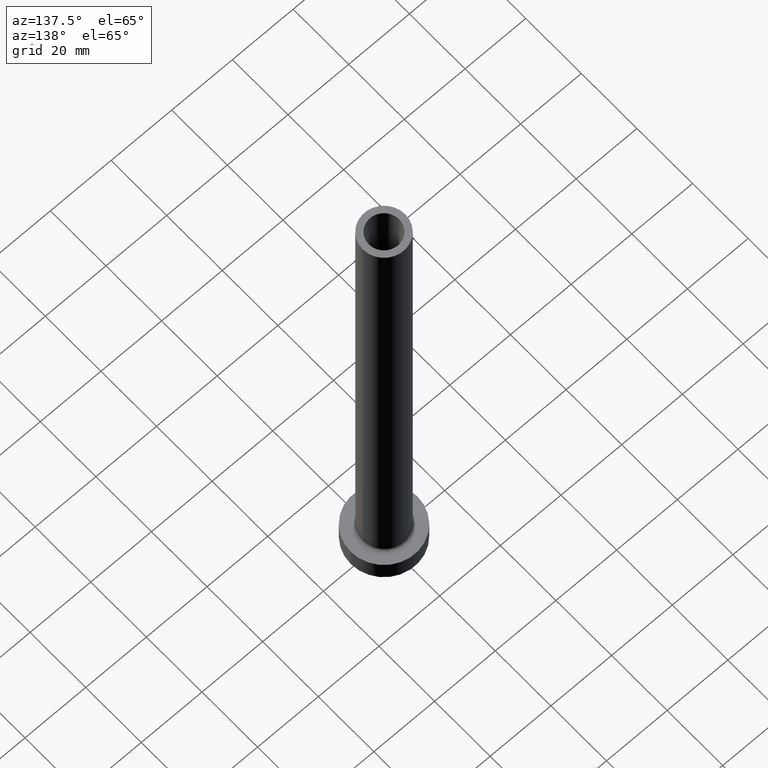
[diagram: clean part render]
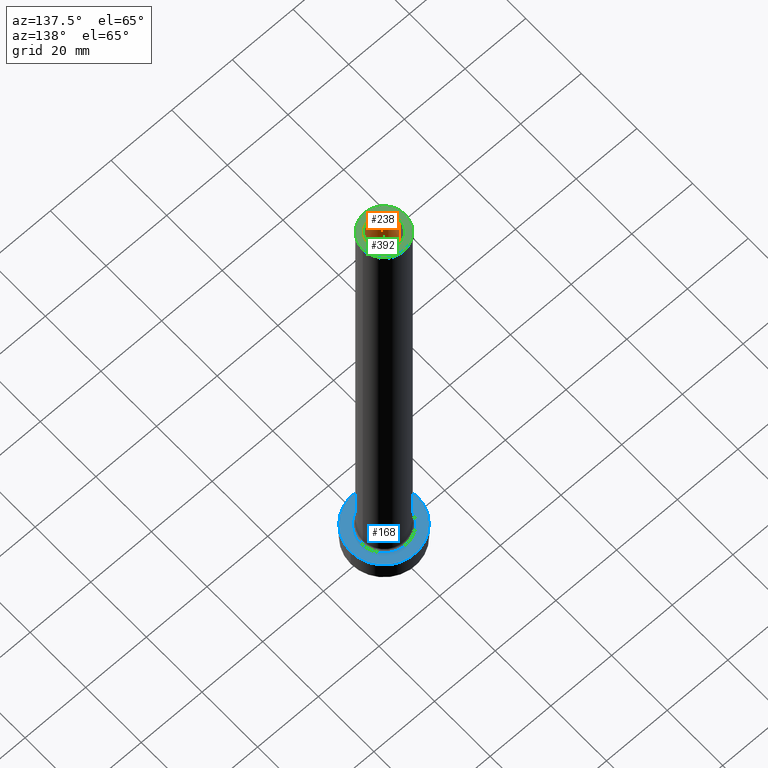
[diagram: same view with three faces highlighted in distinct colors, each labeled with its STEP entity id]
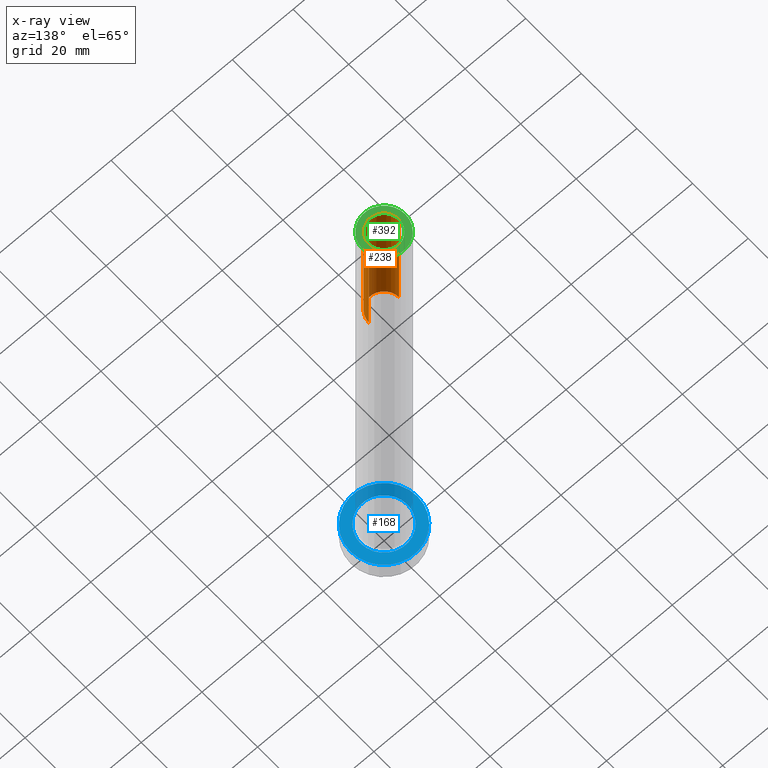
[diagram: x-ray of the same camera — body ghosted, the three highlighted faces saturated]
A machine part, auxiliary view with three faces highlighted in distinct colors.
The next image is the same camera in x-ray (body ghosted, the three faces saturated) — at least one of them is partly hidden behind the body in this view.
Their STEP definitions:

[orange] entity #238 — the highlighted cylindrical surface (edge-blend (fillet) strip) has radius 5 mm, axis along (0, 0, -1).
#26 = CARTESIAN_POINT ( 'NONE',  ( -5.000000000000000000, 0.000000000000000000, 130.0000000000000000 ) ) ;
#33 = VERTEX_POINT ( 'NONE', #400 ) ;
#40 = ORIENTED_EDGE ( 'NONE', *, *, #110, .T. ) ;
#58 = DIRECTION ( 'NONE',  ( 0.000000000000000000, 0.000000000000000000, -1.000000000000000000 ) ) ;
#62 = CARTESIAN_POINT ( 'NONE',  ( -5.000000000000000000, 0.000000000000000000, 175.0000000000000284 ) ) ;
#72 = CARTESIAN_POINT ( 'NONE',  ( -5.000000000000000000, 0.000000000000000000, 175.0000000000000284 ) ) ;
#73 = DIRECTION ( 'NONE',  ( 0.000000000000000000, 0.000000000000000000, -1.000000000000000000 ) ) ;
#87 = ORIENTED_EDGE ( 'NONE', *, *, #348, .T. ) ;
#92 = VECTOR ( 'NONE', #73, 1000.000000000000000 ) ;
#97 = VERTEX_POINT ( 'NONE', #26 ) ;
#98 = EDGE_CURVE ( 'NONE', #457, #97, #305, .T. ) ;
#100 = DIRECTION ( 'NONE',  ( 0.000000000000000000, 0.000000000000000000, 1.000000000000000000 ) ) ;
#102 = CARTESIAN_POINT ( 'NONE',  ( 0.000000000000000000, 0.000000000000000000, 130.0000000000000000 ) ) ;
#104 = EDGE_CURVE ( 'NONE', #97, #33, #362, .T. ) ;
#110 = EDGE_CURVE ( 'NONE', #184, #33, #418, .T. ) ;
#117 = VECTOR ( 'NONE', #413, 1000.000000000000000 ) ;
#126 = CARTESIAN_POINT ( 'NONE',  ( 0.000000000000000000, 0.000000000000000000, 175.0000000000000284 ) ) ;
#137 = CIRCLE ( 'NONE', #458, 5.000000000000000000 ) ;
#184 = VERTEX_POINT ( 'NONE', #196 ) ;
#196 = CARTESIAN_POINT ( 'NONE',  ( 5.000000000000000000, 6.123233995736766282E-16, 175.0000000000000284 ) ) ;
#202 = DIRECTION ( 'NONE',  ( 1.000000000000000000, 0.000000000000000000, 0.000000000000000000 ) ) ;
#238 = ADVANCED_FACE ( 'NONE', ( #368 ), #412, .F. ) ;
#240 = ORIENTED_EDGE ( 'NONE', *, *, #104, .F. ) ;
#277 = DIRECTION ( 'NONE',  ( 1.000000000000000000, 0.000000000000000000, 0.000000000000000000 ) ) ;
#278 = DIRECTION ( 'NONE',  ( 0.000000000000000000, 0.000000000000000000, 1.000000000000000000 ) ) ;
#285 = AXIS2_PLACEMENT_3D ( 'NONE', #126, #58, #304 ) ;
#304 = DIRECTION ( 'NONE',  ( -1.000000000000000000, 0.000000000000000000, 0.000000000000000000 ) ) ;
#305 = LINE ( 'NONE', #72, #117 ) ;
#321 = EDGE_LOOP ( 'NONE', ( #87, #40, #240, #404 ) ) ;
#340 = CARTESIAN_POINT ( 'NONE',  ( 5.000000000000000000, 6.123233995736766282E-16, 175.0000000000000284 ) ) ;
#347 = CARTESIAN_POINT ( 'NONE',  ( 0.000000000000000000, 0.000000000000000000, 175.0000000000000284 ) ) ;
#348 = EDGE_CURVE ( 'NONE', #457, #184, #137, .T. ) ;
#362 = CIRCLE ( 'NONE', #430, 5.000000000000000000 ) ;
#368 = FACE_OUTER_BOUND ( 'NONE', #321, .T. ) ;
#400 = CARTESIAN_POINT ( 'NONE',  ( 5.000000000000000000, 6.123233995736766282E-16, 130.0000000000000000 ) ) ;
#404 = ORIENTED_EDGE ( 'NONE', *, *, #98, .F. ) ;
#412 = CYLINDRICAL_SURFACE ( 'NONE', #285, 5.000000000000000000 ) ;
#413 = DIRECTION ( 'NONE',  ( 0.000000000000000000, 0.000000000000000000, -1.000000000000000000 ) ) ;
#418 = LINE ( 'NONE', #340, #92 ) ;
#430 = AXIS2_PLACEMENT_3D ( 'NONE', #102, #100, #277 ) ;
#457 = VERTEX_POINT ( 'NONE', #62 ) ;
#458 = AXIS2_PLACEMENT_3D ( 'NONE', #347, #278, #202 ) ;

[blue] entity #168 — the highlighted planar face has unit normal (0, 0, 1).
#23 = DIRECTION ( 'NONE',  ( -0.000000000000000000, -0.000000000000000000, -1.000000000000000000 ) ) ;
#29 = VERTEX_POINT ( 'NONE', #439 ) ;
#34 = EDGE_CURVE ( 'NONE', #395, #29, #453, .T. ) ;
#36 = FACE_BOUND ( 'NONE', #312, .T. ) ;
#42 = EDGE_LOOP ( 'NONE', ( #153, #53 ) ) ;
#53 = ORIENTED_EDGE ( 'NONE', *, *, #309, .T. ) ;
#55 = DIRECTION ( 'NONE',  ( 1.000000000000000000, 0.000000000000000000, 0.000000000000000000 ) ) ;
#56 = CIRCLE ( 'NONE', #143, 11.00000000000000000 ) ;
#61 = CARTESIAN_POINT ( 'NONE',  ( 0.000000000000000000, 0.000000000000000000, 7.000000000000000000 ) ) ;
#65 = DIRECTION ( 'NONE',  ( 1.000000000000000000, 0.000000000000000000, -0.000000000000000000 ) ) ;
#67 = DIRECTION ( 'NONE',  ( 0.000000000000000000, 0.000000000000000000, 1.000000000000000000 ) ) ;
#75 = ORIENTED_EDGE ( 'NONE', *, *, #34, .T. ) ;
#78 = CARTESIAN_POINT ( 'NONE',  ( 7.700000000000001066, 0.000000000000000000, 7.000000000000006217 ) ) ;
#103 = ORIENTED_EDGE ( 'NONE', *, *, #280, .T. ) ;
#108 = AXIS2_PLACEMENT_3D ( 'NONE', #61, #67, #65 ) ;
#116 = DIRECTION ( 'NONE',  ( 0.000000000000000000, 0.000000000000000000, 1.000000000000000000 ) ) ;
#143 = AXIS2_PLACEMENT_3D ( 'NONE', #313, #116, #290 ) ;
#152 = AXIS2_PLACEMENT_3D ( 'NONE', #318, #275, #379 ) ;
#153 = ORIENTED_EDGE ( 'NONE', *, *, #359, .T. ) ;
#168 = ADVANCED_FACE ( 'NONE', ( #36, #223 ), #193, .T. ) ;
#179 = CIRCLE ( 'NONE', #293, 7.700000000000001066 ) ;
#193 = PLANE ( 'NONE',  #108 ) ;
#223 = FACE_OUTER_BOUND ( 'NONE', #42, .T. ) ;
#230 = DIRECTION ( 'NONE',  ( 1.000000000000000000, 0.000000000000000000, 0.000000000000000000 ) ) ;
#247 = CARTESIAN_POINT ( 'NONE',  ( 11.00000000000000000, 1.347111479062088405E-15, 7.000000000000000000 ) ) ;
#252 = AXIS2_PLACEMENT_3D ( 'NONE', #337, #308, #230 ) ;
#255 = VERTEX_POINT ( 'NONE', #260 ) ;
#260 = CARTESIAN_POINT ( 'NONE',  ( -11.00000000000000000, 0.000000000000000000, 7.000000000000000000 ) ) ;
#275 = DIRECTION ( 'NONE',  ( 0.000000000000000000, 0.000000000000000000, 1.000000000000000000 ) ) ;
#280 = EDGE_CURVE ( 'NONE', #29, #395, #179, .T. ) ;
#290 = DIRECTION ( 'NONE',  ( 1.000000000000000000, 0.000000000000000000, 0.000000000000000000 ) ) ;
#293 = AXIS2_PLACEMENT_3D ( 'NONE', #306, #23, #55 ) ;
#306 = CARTESIAN_POINT ( 'NONE',  ( 0.000000000000000000, 0.000000000000000000, 7.000000000000000000 ) ) ;
#308 = DIRECTION ( 'NONE',  ( -0.000000000000000000, -0.000000000000000000, -1.000000000000000000 ) ) ;
#309 = EDGE_CURVE ( 'NONE', #387, #255, #355, .T. ) ;
#312 = EDGE_LOOP ( 'NONE', ( #75, #103 ) ) ;
#313 = CARTESIAN_POINT ( 'NONE',  ( 0.000000000000000000, 0.000000000000000000, 7.000000000000000000 ) ) ;
#318 = CARTESIAN_POINT ( 'NONE',  ( 0.000000000000000000, 0.000000000000000000, 7.000000000000000000 ) ) ;
#337 = CARTESIAN_POINT ( 'NONE',  ( 0.000000000000000000, 0.000000000000000000, 7.000000000000000000 ) ) ;
#355 = CIRCLE ( 'NONE', #152, 11.00000000000000000 ) ;
#359 = EDGE_CURVE ( 'NONE', #255, #387, #56, .T. ) ;
#379 = DIRECTION ( 'NONE',  ( 1.000000000000000000, 0.000000000000000000, 0.000000000000000000 ) ) ;
#387 = VERTEX_POINT ( 'NONE', #247 ) ;
#395 = VERTEX_POINT ( 'NONE', #78 ) ;
#439 = CARTESIAN_POINT ( 'NONE',  ( -7.700000000000001066, 9.429780353434621002E-16, 7.000000000000006217 ) ) ;
#453 = CIRCLE ( 'NONE', #252, 7.700000000000001066 ) ;

[green] entity #392 — the highlighted planar face has unit normal (0, 0, 1).
#8 = EDGE_LOOP ( 'NONE', ( #460, #440 ) ) ;
#44 = AXIS2_PLACEMENT_3D ( 'NONE', #363, #136, #333 ) ;
#46 = DIRECTION ( 'NONE',  ( 0.000000000000000000, 0.000000000000000000, 1.000000000000000000 ) ) ;
#59 = DIRECTION ( 'NONE',  ( 1.000000000000000000, 0.000000000000000000, 0.000000000000000000 ) ) ;
#62 = CARTESIAN_POINT ( 'NONE',  ( -5.000000000000000000, 0.000000000000000000, 175.0000000000000284 ) ) ;
#68 = ORIENTED_EDGE ( 'NONE', *, *, #120, .T. ) ;
#82 = FACE_BOUND ( 'NONE', #8, .T. ) ;
#83 = EDGE_CURVE ( 'NONE', #184, #457, #435, .T. ) ;
#115 = PLANE ( 'NONE',  #257 ) ;
#120 = EDGE_CURVE ( 'NONE', #219, #206, #427, .T. ) ;
#130 = CARTESIAN_POINT ( 'NONE',  ( 7.000000000000000888, 8.572527594031472204E-16, 175.0000000000000284 ) ) ;
#136 = DIRECTION ( 'NONE',  ( 0.000000000000000000, 0.000000000000000000, 1.000000000000000000 ) ) ;
#137 = CIRCLE ( 'NONE', #458, 5.000000000000000000 ) ;
#170 = CIRCLE ( 'NONE', #44, 7.000000000000000888 ) ;
#184 = VERTEX_POINT ( 'NONE', #196 ) ;
#196 = CARTESIAN_POINT ( 'NONE',  ( 5.000000000000000000, 6.123233995736766282E-16, 175.0000000000000284 ) ) ;
#202 = DIRECTION ( 'NONE',  ( 1.000000000000000000, 0.000000000000000000, 0.000000000000000000 ) ) ;
#206 = VERTEX_POINT ( 'NONE', #130 ) ;
#208 = AXIS2_PLACEMENT_3D ( 'NONE', #311, #269, #59 ) ;
#219 = VERTEX_POINT ( 'NONE', #297 ) ;
#221 = DIRECTION ( 'NONE',  ( 1.000000000000000000, 0.000000000000000000, 0.000000000000000000 ) ) ;
#233 = CARTESIAN_POINT ( 'NONE',  ( 0.000000000000000000, 0.000000000000000000, 175.0000000000000284 ) ) ;
#257 = AXIS2_PLACEMENT_3D ( 'NONE', #357, #46, #325 ) ;
#269 = DIRECTION ( 'NONE',  ( 0.000000000000000000, 0.000000000000000000, 1.000000000000000000 ) ) ;
#276 = EDGE_CURVE ( 'NONE', #206, #219, #170, .T. ) ;
#278 = DIRECTION ( 'NONE',  ( 0.000000000000000000, 0.000000000000000000, 1.000000000000000000 ) ) ;
#297 = CARTESIAN_POINT ( 'NONE',  ( -7.000000000000000888, 0.000000000000000000, 175.0000000000000284 ) ) ;
#311 = CARTESIAN_POINT ( 'NONE',  ( 0.000000000000000000, 0.000000000000000000, 175.0000000000000284 ) ) ;
#325 = DIRECTION ( 'NONE',  ( 1.000000000000000000, 0.000000000000000000, -0.000000000000000000 ) ) ;
#328 = AXIS2_PLACEMENT_3D ( 'NONE', #233, #376, #221 ) ;
#333 = DIRECTION ( 'NONE',  ( 1.000000000000000000, 0.000000000000000000, 0.000000000000000000 ) ) ;
#347 = CARTESIAN_POINT ( 'NONE',  ( 0.000000000000000000, 0.000000000000000000, 175.0000000000000284 ) ) ;
#348 = EDGE_CURVE ( 'NONE', #457, #184, #137, .T. ) ;
#357 = CARTESIAN_POINT ( 'NONE',  ( 0.000000000000000000, 0.000000000000000000, 175.0000000000000284 ) ) ;
#361 = ORIENTED_EDGE ( 'NONE', *, *, #276, .T. ) ;
#363 = CARTESIAN_POINT ( 'NONE',  ( 0.000000000000000000, 0.000000000000000000, 175.0000000000000284 ) ) ;
#370 = EDGE_LOOP ( 'NONE', ( #68, #361 ) ) ;
#376 = DIRECTION ( 'NONE',  ( 0.000000000000000000, 0.000000000000000000, 1.000000000000000000 ) ) ;
#392 = ADVANCED_FACE ( 'NONE', ( #82, #394 ), #115, .T. ) ;
#394 = FACE_OUTER_BOUND ( 'NONE', #370, .T. ) ;
#427 = CIRCLE ( 'NONE', #328, 7.000000000000000888 ) ;
#435 = CIRCLE ( 'NONE', #208, 5.000000000000000000 ) ;
#440 = ORIENTED_EDGE ( 'NONE', *, *, #83, .F. ) ;
#457 = VERTEX_POINT ( 'NONE', #62 ) ;
#458 = AXIS2_PLACEMENT_3D ( 'NONE', #347, #278, #202 ) ;
#460 = ORIENTED_EDGE ( 'NONE', *, *, #348, .F. ) ;